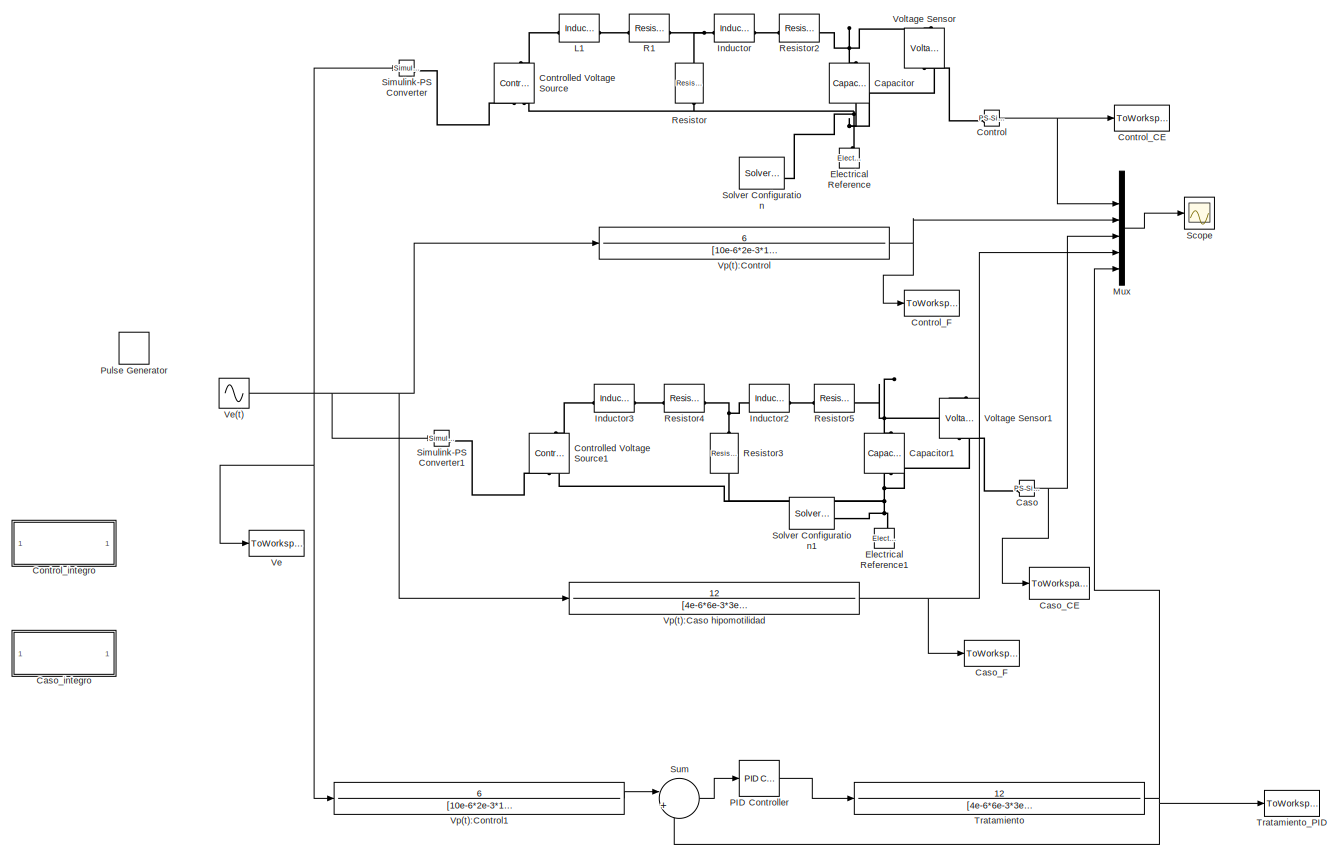
[diagram: root canvas - part 1/1, most of the canvas]
MODEL slx_6d338f7b5544
KIND model
CONFIG AbsTol = auto
CONFIG EnableMultiTasking = off
CONFIG FixedStep = auto
CONFIG MaxStep = 1E-3
CONFIG MinStep = auto
CONFIG RelTol = 1e-3
CONFIG SampleTimeConstraint = Unconstrained
CONFIG SolverName = ode23t
CONFIG StartTime = 0.0
CONFIG StopTime = 10.0
BLOCK [Reference] Capacitor  REF=fl_lib/Electrical/Electrical Elements/Capacitor
  NameLocation = left
  SourceBlock = fl_lib/Electrical/Electrical Elements/Capacitor
  SourceType = Capacitor
BLOCK [Reference] Capacitor1  REF=fl_lib/Electrical/Electrical Elements/Capacitor
  NameLocation = left
  SourceBlock = fl_lib/Electrical/Electrical Elements/Capacitor
  SourceType = Capacitor
BLOCK [Reference] Caso  REF=nesl_utility/PS-Simulink
Converter
  SourceBlock = nesl_utility/PS-Simulink\nConverter
  SourceType = PS-Simulink\nConverter
BLOCK [ToWorkspace] Caso_CE
  FixptAsFi = on
  MaxDataPoints = inf
  SampleTime = -1
  Save2DSignal = 2-D array (concatenate along first dimension)
  VariableName = Vp3
BLOCK [ToWorkspace] Caso_F
  FixptAsFi = on
  MaxDataPoints = inf
  SampleTime = -1
  Save2DSignal = 2-D array (concatenate along first dimension)
  VariableName = Vp4
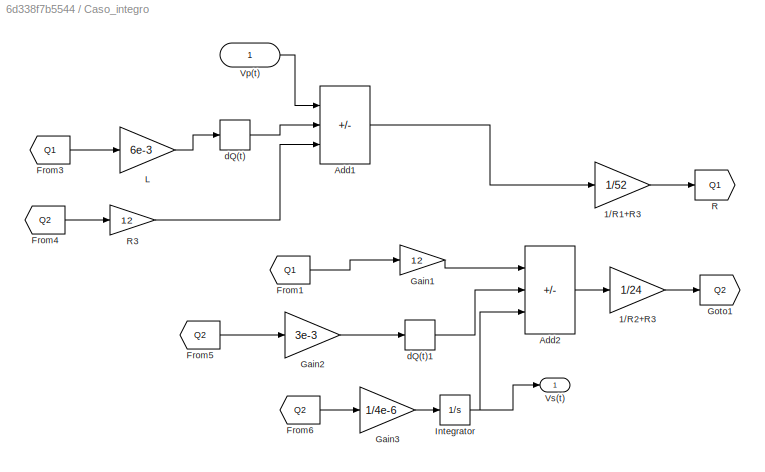
BLOCK [SubSystem] Caso_integro
BLOCK [Gain] Caso_integro/1//R1+R3
  Gain = 1/52
BLOCK [Gain] Caso_integro/1//R2+R3
  Gain = 1/24
BLOCK [Sum] Caso_integro/Add1
  IconShape = rectangular
  Inputs = +-+
BLOCK [Sum] Caso_integro/Add2
  IconShape = rectangular
  Inputs = +--
BLOCK [From] Caso_integro/From1
  GotoTag = Q1
BLOCK [From] Caso_integro/From3
  GotoTag = Q1
BLOCK [From] Caso_integro/From4
  GotoTag = Q2
BLOCK [From] Caso_integro/From5
  GotoTag = Q2
BLOCK [From] Caso_integro/From6
  GotoTag = Q2
BLOCK [Gain] Caso_integro/Gain1
  Gain = 12
BLOCK [Gain] Caso_integro/Gain2
  Gain = 3e-3
BLOCK [Gain] Caso_integro/Gain3
  Gain = 1/4e-6
BLOCK [Goto] Caso_integro/Goto1
  GotoTag = Q2
BLOCK [Integrator] Caso_integro/Integrator
BLOCK [Gain] Caso_integro/L
  Gain = 6e-3
BLOCK [Goto] Caso_integro/R
  GotoTag = Q1
BLOCK [Gain] Caso_integro/R3
  Gain = 12
BLOCK [Inport] Caso_integro/Vp(t)
BLOCK [Outport] Caso_integro/Vs(t)
BLOCK [Derivative] Caso_integro/dQ(t)
BLOCK [Derivative] Caso_integro/dQ(t)1
BLOCK [Reference] Control  REF=nesl_utility/PS-Simulink
Converter
  SourceBlock = nesl_utility/PS-Simulink\nConverter
  SourceType = PS-Simulink\nConverter
BLOCK [ToWorkspace] Control_CE
  FixptAsFi = on
  MaxDataPoints = inf
  SampleTime = -1
  Save2DSignal = 2-D array (concatenate along first dimension)
  VariableName = Vp1
BLOCK [ToWorkspace] Control_F
  FixptAsFi = on
  MaxDataPoints = inf
  SampleTime = -1
  Save2DSignal = 2-D array (concatenate along first dimension)
  VariableName = Vp2
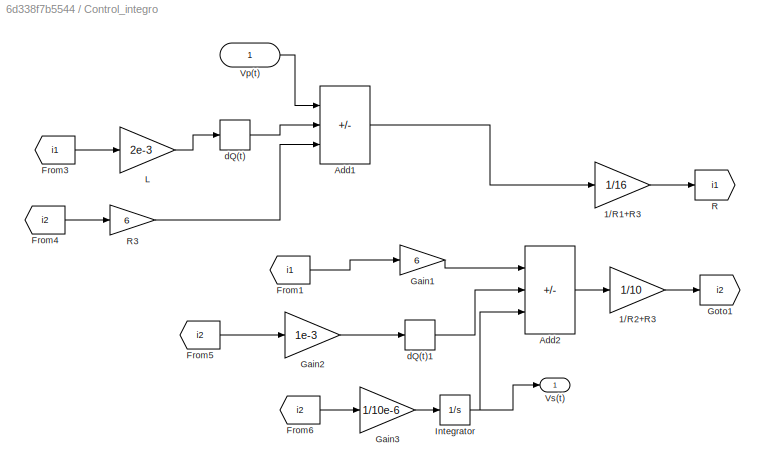
BLOCK [SubSystem] Control_integro
BLOCK [Gain] Control_integro/1//R1+R3
  Gain = 1/16
BLOCK [Gain] Control_integro/1//R2+R3
  Gain = 1/10
BLOCK [Sum] Control_integro/Add1
  IconShape = rectangular
  Inputs = +-+
BLOCK [Sum] Control_integro/Add2
  IconShape = rectangular
  Inputs = +--
BLOCK [From] Control_integro/From1
  GotoTag = i1
BLOCK [From] Control_integro/From3
  GotoTag = i1
BLOCK [From] Control_integro/From4
  GotoTag = i2
BLOCK [From] Control_integro/From5
  GotoTag = i2
BLOCK [From] Control_integro/From6
  GotoTag = i2
BLOCK [Gain] Control_integro/Gain1
  Gain = 6
BLOCK [Gain] Control_integro/Gain2
  Gain = 1e-3
BLOCK [Gain] Control_integro/Gain3
  Gain = 1/10e-6
BLOCK [Goto] Control_integro/Goto1
  GotoTag = i2
BLOCK [Integrator] Control_integro/Integrator
BLOCK [Gain] Control_integro/L
  Gain = 2e-3
BLOCK [Goto] Control_integro/R
  GotoTag = i1
BLOCK [Gain] Control_integro/R3
  Gain = 6
BLOCK [Inport] Control_integro/Vp(t)
BLOCK [Outport] Control_integro/Vs(t)
BLOCK [Derivative] Control_integro/dQ(t)
BLOCK [Derivative] Control_integro/dQ(t)1
BLOCK [Reference] Controlled Voltage Source  REF=fl_lib/Electrical/Electrical Sources/Controlled Voltage
Source
  NameLocation = right
  SourceBlock = fl_lib/Electrical/Electrical Sources/Controlled Voltage\nSource
  SourceType = Controlled Voltage\nSource
BLOCK [Reference] Controlled Voltage Source1  REF=fl_lib/Electrical/Electrical Sources/Controlled Voltage
Source
  NameLocation = right
  SourceBlock = fl_lib/Electrical/Electrical Sources/Controlled Voltage\nSource
  SourceType = Controlled Voltage\nSource
BLOCK [Reference] Electrical Reference  REF=fl_lib/Electrical/Electrical Elements/Electrical Reference
  NameLocation = right
  SourceBlock = fl_lib/Electrical/Electrical Elements/Electrical Reference
  SourceType = Electrical Reference
BLOCK [Reference] Electrical Reference1  REF=fl_lib/Electrical/Electrical Elements/Electrical Reference
  NameLocation = right
  SourceBlock = fl_lib/Electrical/Electrical Elements/Electrical Reference
  SourceType = Electrical Reference
BLOCK [Reference] Inductor  REF=fl_lib/Electrical/Electrical Elements/Inductor
  SourceBlock = fl_lib/Electrical/Electrical Elements/Inductor
  SourceType = Inductor
BLOCK [Reference] Inductor2  REF=fl_lib/Electrical/Electrical Elements/Inductor
  SourceBlock = fl_lib/Electrical/Electrical Elements/Inductor
  SourceType = Inductor
BLOCK [Reference] Inductor3  REF=fl_lib/Electrical/Electrical Elements/Inductor
  SourceBlock = fl_lib/Electrical/Electrical Elements/Inductor
  SourceType = Inductor
BLOCK [Reference] L1  REF=fl_lib/Electrical/Electrical Elements/Inductor
  SourceBlock = fl_lib/Electrical/Electrical Elements/Inductor
  SourceType = Inductor
BLOCK [Mux] Mux
  DisplayOption = bar
  Inputs = 6
BLOCK [Reference] PID Controller  REF=slpidlib/PID Controller
  LibrarySourceBlock = simulink/Continuous/PID Controller
  SourceBlock = slpidlib/PID Controller
  SourceType = PID 1dof
BLOCK [DiscretePulseGenerator] Pulse Generator
  Period = 10
  PulseType = Time based
  PulseWidth = 5
BLOCK [Reference] R1  REF=fl_lib/Electrical/Electrical Elements/Resistor
  SourceBlock = fl_lib/Electrical/Electrical Elements/Resistor
  SourceType = Resistor
BLOCK [Reference] Resistor  REF=fl_lib/Electrical/Electrical Elements/Resistor
  NameLocation = left
  SourceBlock = fl_lib/Electrical/Electrical Elements/Resistor
  SourceType = Resistor
BLOCK [Reference] Resistor2  REF=fl_lib/Electrical/Electrical Elements/Resistor
  SourceBlock = fl_lib/Electrical/Electrical Elements/Resistor
  SourceType = Resistor
BLOCK [Reference] Resistor3  REF=fl_lib/Electrical/Electrical Elements/Resistor
  NameLocation = left
  SourceBlock = fl_lib/Electrical/Electrical Elements/Resistor
  SourceType = Resistor
BLOCK [Reference] Resistor4  REF=fl_lib/Electrical/Electrical Elements/Resistor
  SourceBlock = fl_lib/Electrical/Electrical Elements/Resistor
  SourceType = Resistor
BLOCK [Reference] Resistor5  REF=fl_lib/Electrical/Electrical Elements/Resistor
  SourceBlock = fl_lib/Electrical/Electrical Elements/Resistor
  SourceType = Resistor
BLOCK [Scope] Scope
  Floating = off
  NumInputPorts = 1
  ScopeSpecificationString = Simulink.scopes.TimeScopeBlockCfg('CurrentConfiguration', extmgr.ConfigurationSet(extmgr.Configuration('Core','General UI',true),extmgr.Configuration('Core','Source UI',true),extmgr.Configuration('Sources','WiredSimulink',true),extmgr.Configuration('Visuals','Time Domain',true,'SerializedDisplays',{struct('MinYLimReal','-0.46875','MaxYLimReal','0.46875','YLabelReal','','MinYLimMag','0.00000','MaxY...<+1621ch>
BLOCK [Reference] Simulink-PS Converter  REF=nesl_utility/Simulink-PS
Converter
  SourceBlock = nesl_utility/Simulink-PS\nConverter
  SourceType = Simulink-PS\nConverter
BLOCK [Reference] Simulink-PS Converter1  REF=nesl_utility/Simulink-PS
Converter
  SourceBlock = nesl_utility/Simulink-PS\nConverter
  SourceType = Simulink-PS\nConverter
BLOCK [Reference] Solver Configuration  REF=nesl_utility/Solver
Configuration
  SourceBlock = nesl_utility/Solver\nConfiguration
  SourceType = Solver\nConfiguration
BLOCK [Reference] Solver Configuration1  REF=nesl_utility/Solver
Configuration
  SourceBlock = nesl_utility/Solver\nConfiguration
  SourceType = Solver\nConfiguration
BLOCK [Sum] Sum
  Inputs = |+-
BLOCK [TransferFcn] Tratamiento
  Denominator = [4e-6*6e-3*3e-3,(4e-6*6e-3*12)+(4e-6*3e-3*40)+(4e-6*6e-3*12)+(4e-6*3e-3*12),(4e-6*10*12)+(4e-6*4*12)+(10e-6*4*12)+6e-3,40+12]
  Numerator = 12
BLOCK [ToWorkspace] Tratamiento_PID
  FixptAsFi = on
  MaxDataPoints = inf
  SampleTime = -1
  Save2DSignal = 2-D array (concatenate along first dimension)
  VariableName = Vp5
BLOCK [ToWorkspace] Ve
  FixptAsFi = on
  MaxDataPoints = inf
  SampleTime = -1
  Save2DSignal = 2-D array (concatenate along first dimension)
  VariableName = Vp
BLOCK [Sin] Ve(t)
  SampleTime = 0
BLOCK [Reference] Voltage Sensor  REF=fl_lib/Electrical/Electrical Sensors/Voltage Sensor
  NameLocation = right
  SourceBlock = fl_lib/Electrical/Electrical Sensors/Voltage Sensor
  SourceType = Voltage Sensor
BLOCK [Reference] Voltage Sensor1  REF=fl_lib/Electrical/Electrical Sensors/Voltage Sensor
  NameLocation = right
  SourceBlock = fl_lib/Electrical/Electrical Sensors/Voltage Sensor
  SourceType = Voltage Sensor
BLOCK [TransferFcn] Vp(t):Caso hipomotilidad
  Denominator = [4e-6*6e-3*3e-3,(4e-6*6e-3*12)+(4e-6*3e-3*40)+(4e-6*6e-3*12)+(4e-6*3e-3*12),(4e-6*10*12)+(4e-6*4*12)+(10e-6*4*12)+6e-3,40+12]
  Numerator = 12
BLOCK [TransferFcn] Vp(t):Control
  Denominator = [10e-6*2e-3*1e-3,(10e-6*2e-3*4)+(10e-6*1e-3*10)+(10e-6*2e-3*6)+(10e-6*1e-3*6),(10e-6*10*4)+(10e-6*4*6)+(10e-6*4*6)+2e-3,10+6]
  Numerator = 6
BLOCK [TransferFcn] Vp(t):Control1
  Denominator = [10e-6*2e-3*1e-3,(10e-6*2e-3*4)+(10e-6*1e-3*10)+(10e-6*2e-3*6)+(10e-6*1e-3*6),(10e-6*10*4)+(10e-6*4*6)+(10e-6*4*6)+2e-3,10+6]
  Numerator = 6
NET Caso:1 -> Caso_CE:1, Mux:4
LINE Caso_integro/1//R1+R3:1 -> Caso_integro/R:1
LINE Caso_integro/1//R2+R3:1 -> Caso_integro/Goto1:1
LINE Caso_integro/Add1:1 -> Caso_integro/1//R1+R3:1
LINE Caso_integro/Add2:1 -> Caso_integro/1//R2+R3:1
LINE Caso_integro/From1:1 -> Caso_integro/Gain1:1
LINE Caso_integro/From3:1 -> Caso_integro/L:1
LINE Caso_integro/From4:1 -> Caso_integro/R3:1
LINE Caso_integro/From5:1 -> Caso_integro/Gain2:1
LINE Caso_integro/From6:1 -> Caso_integro/Gain3:1
LINE Caso_integro/Gain1:1 -> Caso_integro/Add2:1
LINE Caso_integro/Gain2:1 -> Caso_integro/dQ(t)1:1
LINE Caso_integro/Gain3:1 -> Caso_integro/Integrator:1
NET Caso_integro/Integrator:1 -> Caso_integro/Add2:3, Caso_integro/Vs(t):1
LINE Caso_integro/L:1 -> Caso_integro/dQ(t):1
LINE Caso_integro/R3:1 -> Caso_integro/Add1:3
LINE Caso_integro/Vp(t):1 -> Caso_integro/Add1:1
LINE Caso_integro/dQ(t)1:1 -> Caso_integro/Add2:2
LINE Caso_integro/dQ(t):1 -> Caso_integro/Add1:2
NET Control:1 -> Control_CE:1, Mux:2
LINE Control_integro/1//R1+R3:1 -> Control_integro/R:1
LINE Control_integro/1//R2+R3:1 -> Control_integro/Goto1:1
LINE Control_integro/Add1:1 -> Control_integro/1//R1+R3:1
LINE Control_integro/Add2:1 -> Control_integro/1//R2+R3:1
LINE Control_integro/From1:1 -> Control_integro/Gain1:1
LINE Control_integro/From3:1 -> Control_integro/L:1
LINE Control_integro/From4:1 -> Control_integro/R3:1
LINE Control_integro/From5:1 -> Control_integro/Gain2:1
LINE Control_integro/From6:1 -> Control_integro/Gain3:1
LINE Control_integro/Gain1:1 -> Control_integro/Add2:1
LINE Control_integro/Gain2:1 -> Control_integro/dQ(t)1:1
LINE Control_integro/Gain3:1 -> Control_integro/Integrator:1
NET Control_integro/Integrator:1 -> Control_integro/Add2:3, Control_integro/Vs(t):1
LINE Control_integro/L:1 -> Control_integro/dQ(t):1
LINE Control_integro/R3:1 -> Control_integro/Add1:3
LINE Control_integro/Vp(t):1 -> Control_integro/Add1:1
LINE Control_integro/dQ(t)1:1 -> Control_integro/Add2:2
LINE Control_integro/dQ(t):1 -> Control_integro/Add1:2
LINE Mux:1 -> Scope:1
LINE PID Controller:1 -> Tratamiento:1
LINE Sum:1 -> PID Controller:1
NET Tratamiento:1 -> Mux:6, Sum:2, Tratamiento_PID:1
NET Ve(t):1 -> Simulink-PS Converter1:1, Simulink-PS Converter:1, Ve:1, Vp(t):Caso hipomotilidad:1, Vp(t):Control1:1, Vp(t):Control:1
NET Vp(t):Caso hipomotilidad:1 -> Caso_F:1, Mux:5
LINE Vp(t):Control1:1 -> Sum:1
NET Vp(t):Control:1 -> Control_F:1, Mux:3
PNET net1: Capacitor1:LConn1 -- Resistor5:RConn1 -- Voltage Sensor1:LConn1
PNET net2: Capacitor1:RConn1 -- Controlled Voltage Source1:RConn2 -- Electrical Reference1:LConn1 -- Resistor3:RConn1 -- Solver Configuration1:RConn1 -- Voltage Sensor1:RConn2
PNET net3: Capacitor:LConn1 -- Resistor2:RConn1 -- Voltage Sensor:LConn1
PNET net4: Capacitor:RConn1 -- Controlled Voltage Source:RConn2 -- Electrical Reference:LConn1 -- Resistor:RConn1 -- Solver Configuration:RConn1 -- Voltage Sensor:RConn2
PLINE Caso:LConn1 -- Voltage Sensor1:RConn1
PLINE Control:LConn1 -- Voltage Sensor:RConn1
PLINE Controlled Voltage Source1:LConn1 -- Inductor3:LConn1
PLINE Controlled Voltage Source1:RConn1 -- Simulink-PS Converter1:RConn1
PLINE Controlled Voltage Source:LConn1 -- L1:LConn1
PLINE Controlled Voltage Source:RConn1 -- Simulink-PS Converter:RConn1
PNET net5: Inductor2:LConn1 -- Resistor3:LConn1 -- Resistor4:RConn1
PLINE Inductor2:RConn1 -- Resistor5:LConn1
PLINE Inductor3:RConn1 -- Resistor4:LConn1
PNET net6: Inductor:LConn1 -- R1:RConn1 -- Resistor:LConn1
PLINE Inductor:RConn1 -- Resistor2:LConn1
PLINE L1:RConn1 -- R1:LConn1
note: NET lines group one-source signal fan-out (src -> all destinations, sorted); 1:1 wires keep LINE; PNET lines group multi-terminal physical nets as a canonical sorted terminal list (undirected conserving connections); 2-terminal nets keep the pairwise PLINE form
